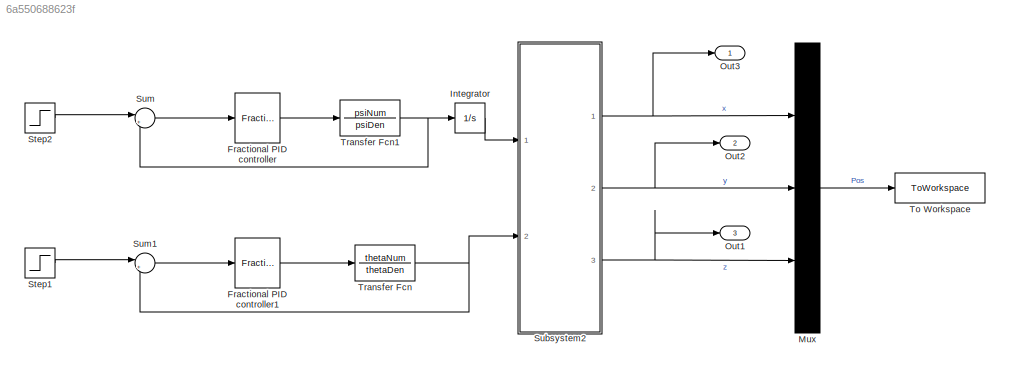
MODEL slx_6a550688623f
KIND model
CONFIG AbsTol = auto
CONFIG EnableMultiTasking = off
CONFIG FixedStep = tStep
CONFIG MaxStep = auto
CONFIG MinStep = auto
CONFIG RelTol = 1e-3
CONFIG SampleTimeConstraint = Unconstrained
CONFIG SolverName = FixedStepAuto
CONFIG StartTime = tStart
CONFIG StopTime = tStop
BLOCK [Reference] Fractional PID controller  REF=fod/Fractional PID  (lib defined in slx_5cb2d42c7bef)
controller
  Ports = [1, 1]
  SourceBlock = fod/Fractional PID\ncontroller
  SourceProductName = FOMCON Toolbox
  SourceType = Fractional PID
BLOCK [Reference] Fractional PID controller1  REF=fod/Fractional PID  (lib defined in slx_5cb2d42c7bef)
controller
  Ports = [1, 1]
  SourceBlock = fod/Fractional PID\ncontroller
  SourceProductName = FOMCON Toolbox
  SourceType = Fractional PID
BLOCK [Integrator] Integrator
  Ports = [1, 1]
BLOCK [Mux] Mux
  DisplayOption = bar
  Inputs = 3
  Ports = [3, 1]
BLOCK [Outport] Out1
  Port = 3
BLOCK [Outport] Out2
  Port = 2
BLOCK [Outport] Out3
BLOCK [Step] Step1
  After = (pi/180)*ds
  SampleTime = 0
  Time = 0
BLOCK [Step] Step2
  After = (pi/180)*dr
  SampleTime = 0
  Time = 0
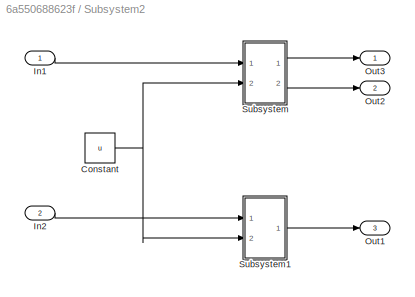
BLOCK [SubSystem] Subsystem2
  Ports = [2, 3]
  RequestExecContextInheritance = off
BLOCK [Constant] Subsystem2/Constant
  Value = u
BLOCK [Inport] Subsystem2/In1
BLOCK [Inport] Subsystem2/In2
  Port = 2
BLOCK [Outport] Subsystem2/Out1
  Port = 3
BLOCK [Outport] Subsystem2/Out2
  Port = 2
BLOCK [Outport] Subsystem2/Out3
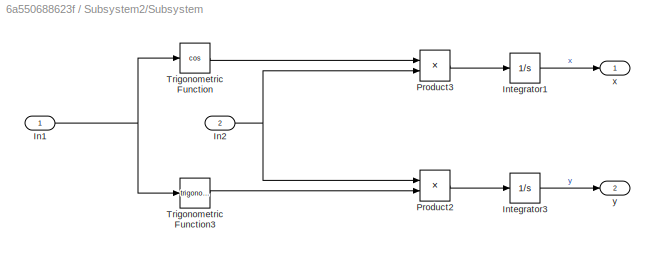
BLOCK [SubSystem] Subsystem2/Subsystem
  Ports = [2, 2]
  RequestExecContextInheritance = off
BLOCK [Inport] Subsystem2/Subsystem/In1
BLOCK [Inport] Subsystem2/Subsystem/In2
  Port = 2
BLOCK [Integrator] Subsystem2/Subsystem/Integrator1
  Ports = [1, 1]
BLOCK [Integrator] Subsystem2/Subsystem/Integrator3
  Ports = [1, 1]
BLOCK [Product] Subsystem2/Subsystem/Product2
  Ports = [2, 1]
BLOCK [Product] Subsystem2/Subsystem/Product3
  Ports = [2, 1]
BLOCK [Trigonometry] Subsystem2/Subsystem/Trigonometric Function
  Operator = cos
  Ports = [1, 1]
BLOCK [Trigonometry] Subsystem2/Subsystem/Trigonometric Function3
  Ports = [1, 1]
BLOCK [Outport] Subsystem2/Subsystem/x
BLOCK [Outport] Subsystem2/Subsystem/y
  Port = 2
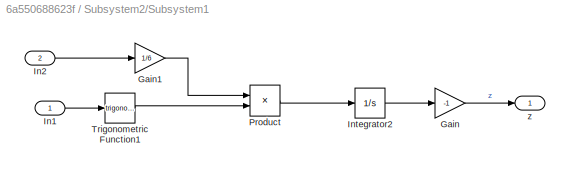
BLOCK [SubSystem] Subsystem2/Subsystem1
  Ports = [2, 1]
  RequestExecContextInheritance = off
BLOCK [Gain] Subsystem2/Subsystem1/Gain
  Gain = -1
BLOCK [Gain] Subsystem2/Subsystem1/Gain1
  Gain = 1/6
BLOCK [Inport] Subsystem2/Subsystem1/In1
BLOCK [Inport] Subsystem2/Subsystem1/In2
  Port = 2
BLOCK [Integrator] Subsystem2/Subsystem1/Integrator2
  Ports = [1, 1]
BLOCK [Product] Subsystem2/Subsystem1/Product
  Ports = [2, 1]
BLOCK [Trigonometry] Subsystem2/Subsystem1/Trigonometric Function1
  Ports = [1, 1]
BLOCK [Outport] Subsystem2/Subsystem1/z
BLOCK [Sum] Sum
  Inputs = |+-
  Ports = [2, 1]
BLOCK [Sum] Sum1
  Inputs = |+-
  Ports = [2, 1]
BLOCK [ToWorkspace] To Workspace
  FixptAsFi = on
  MaxDataPoints = inf
  Ports = [1]
  SampleTime = -1
  SaveFormat = Timeseries
  VariableName = simPos
BLOCK [TransferFcn] Transfer Fcn
  Denominator = thetaDen
  Numerator = thetaNum
BLOCK [TransferFcn] Transfer Fcn1
  Denominator = psiDen
  Numerator = psiNum
LINE Fractional PID controller1:1 -> Transfer Fcn:1
LINE Fractional PID controller:1 -> Transfer Fcn1:1
LINE Integrator:1 -> Subsystem2:1
LINE Mux:1 -> To Workspace:1
LINE Step1:1 -> Sum1:1
LINE Step2:1 -> Sum:1
NET Subsystem2/Constant:1 -> Subsystem2/Subsystem1:2, Subsystem2/Subsystem:2
LINE Subsystem2/In1:1 -> Subsystem2/Subsystem:1
LINE Subsystem2/In2:1 -> Subsystem2/Subsystem1:1
NET Subsystem2/Subsystem/In1:1 -> Subsystem2/Subsystem/Trigonometric Function3:1, Subsystem2/Subsystem/Trigonometric Function:1
NET Subsystem2/Subsystem/In2:1 -> Subsystem2/Subsystem/Product2:1, Subsystem2/Subsystem/Product3:2
LINE Subsystem2/Subsystem/Integrator1:1 -> Subsystem2/Subsystem/x:1
LINE Subsystem2/Subsystem/Integrator3:1 -> Subsystem2/Subsystem/y:1
LINE Subsystem2/Subsystem/Product2:1 -> Subsystem2/Subsystem/Integrator3:1
LINE Subsystem2/Subsystem/Product3:1 -> Subsystem2/Subsystem/Integrator1:1
LINE Subsystem2/Subsystem/Trigonometric Function3:1 -> Subsystem2/Subsystem/Product2:2
LINE Subsystem2/Subsystem/Trigonometric Function:1 -> Subsystem2/Subsystem/Product3:1
LINE Subsystem2/Subsystem1/Gain1:1 -> Subsystem2/Subsystem1/Product:1
LINE Subsystem2/Subsystem1/Gain:1 -> Subsystem2/Subsystem1/z:1
LINE Subsystem2/Subsystem1/In1:1 -> Subsystem2/Subsystem1/Trigonometric Function1:1
LINE Subsystem2/Subsystem1/In2:1 -> Subsystem2/Subsystem1/Gain1:1
LINE Subsystem2/Subsystem1/Integrator2:1 -> Subsystem2/Subsystem1/Gain:1
LINE Subsystem2/Subsystem1/Product:1 -> Subsystem2/Subsystem1/Integrator2:1
LINE Subsystem2/Subsystem1/Trigonometric Function1:1 -> Subsystem2/Subsystem1/Product:2
LINE Subsystem2/Subsystem1:1 -> Subsystem2/Out1:1
LINE Subsystem2/Subsystem:1 -> Subsystem2/Out3:1
LINE Subsystem2/Subsystem:2 -> Subsystem2/Out2:1
NET Subsystem2:1 -> Mux:1, Out3:1
NET Subsystem2:2 -> Mux:2, Out2:1
NET Subsystem2:3 -> Mux:3, Out1:1
LINE Sum1:1 -> Fractional PID controller1:1
LINE Sum:1 -> Fractional PID controller:1
NET Transfer Fcn1:1 -> Integrator:1, Sum:2
NET Transfer Fcn:1 -> Subsystem2:2, Sum1:2
note: NET lines group one-source signal fan-out (src -> all destinations, sorted); 1:1 wires keep LINE
